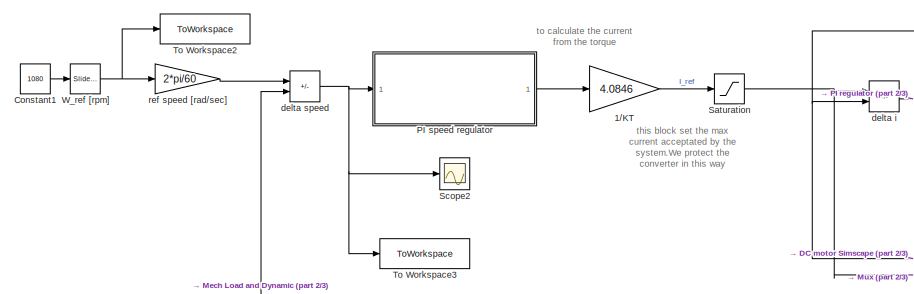
[diagram: root canvas - part 1/3, top left region]
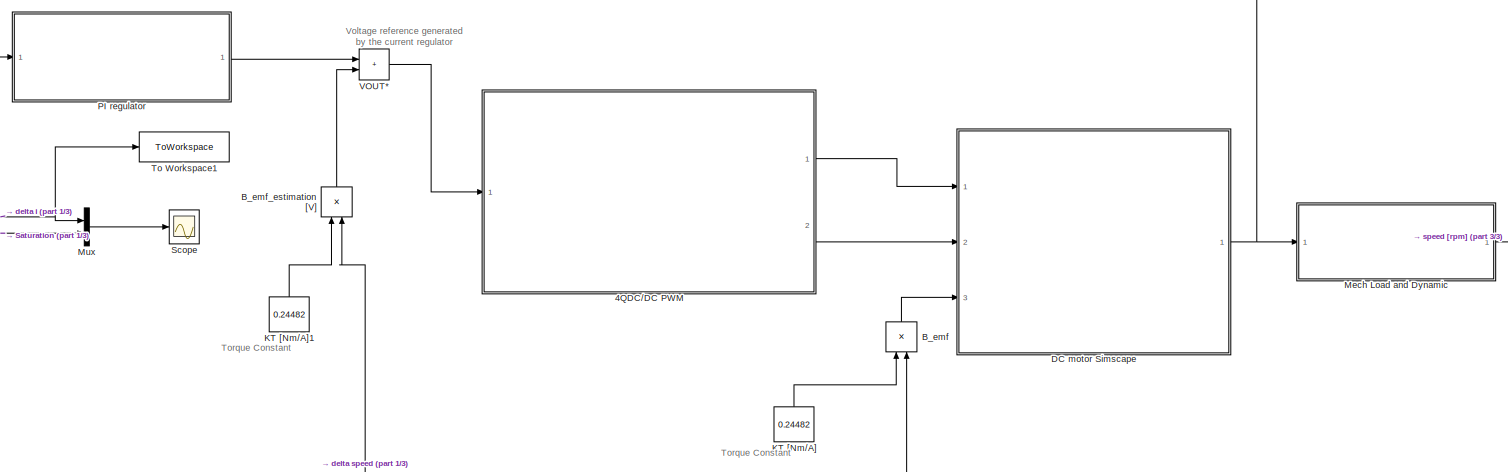
[diagram: root canvas - part 2/3, center side, full height]
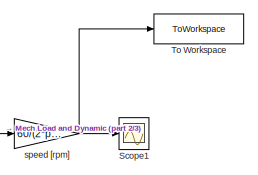
[diagram: root canvas - part 3/3, middle right region]
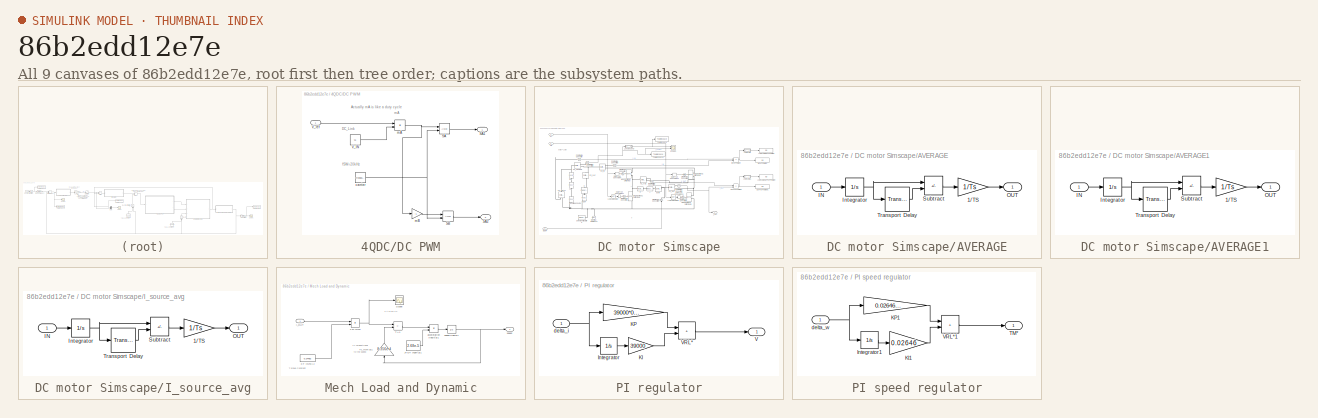
[diagram: thumbnail index - all 9 canvases of the model, root first then tree order]
MODEL slx_86b2edd12e7e
KIND model
CONFIG AbsTol = auto
CONFIG EnableMultiTasking = off
CONFIG FixedStep = auto
CONFIG MaxStep = 0.5e-5
CONFIG MinStep = auto
CONFIG RelTol = 1e-3
CONFIG SampleTimeConstraint = Unconstrained
CONFIG SolverName = VariableStepAuto
CONFIG StartTime = 0.0
CONFIG StopTime = 10.0
BLOCK [Product]  B_emf 
  NameLocation = left
  Ports = [2, 1]
BLOCK [Product]  B_emf_estimation [V]
  NameLocation = left
  Ports = [2, 1]
BLOCK [Gain] 1//KT
  Gain = 4.0846
BLOCK [SubSystem] 4QDC//DC PWM
  Ports = [1, 2]
  RequestExecContextInheritance = off
BLOCK [RelationalOperator] 4QDC//DC PWM/SA
  InputSameDT = off
  OutDataTypeStr = boolean
  Ports = [2, 1]
  RndMeth = Simplest
BLOCK [Outport] 4QDC//DC PWM/SA1
BLOCK [Outport] 4QDC//DC PWM/SA2
  Port = 2
BLOCK [RelationalOperator] 4QDC//DC PWM/SB
  InputSameDT = off
  OutDataTypeStr = boolean
  Ports = [2, 1]
  RndMeth = Simplest
BLOCK [Constant] 4QDC//DC PWM/V_IN
  Value = 72
BLOCK [Inport] 4QDC//DC PWM/V_ref
BLOCK [Reference] 4QDC//DC PWM/carrier  REF=simulink/Sources/Repeating
Sequence
  Ports = [0, 1]
  SourceBlock = simulink/Sources/Repeating\nSequence
  SourceProductBaseCode = SL
  SourceType = Repeating table
BLOCK [Product] 4QDC//DC PWM/mA
  Inputs = */
  Ports = [2, 1]
BLOCK [Gain] 4QDC//DC PWM/mB
  Gain = -1
BLOCK [Constant] Constant1
  Value = 1080
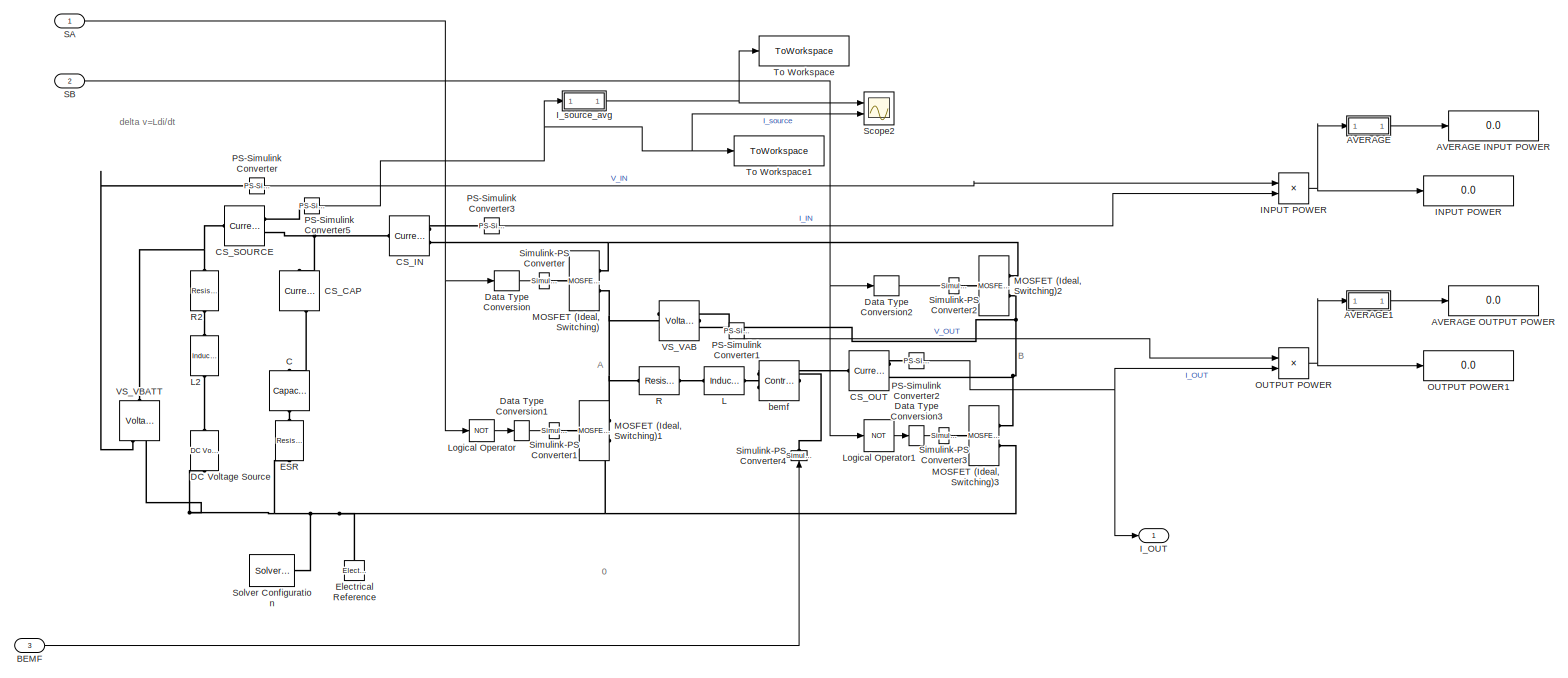
[diagram: DC motor Simscape - part 1/1, most of the canvas]
BLOCK [SubSystem] DC motor Simscape
  Ports = [3, 1]
  RequestExecContextInheritance = off
BLOCK [Display] DC motor Simscape/ INPUT POWER
  Decimation = 1
  Ports = [1]
BLOCK [SubSystem] DC motor Simscape/AVERAGE
  Ports = [1, 1]
  RequestExecContextInheritance = off
BLOCK [Display] DC motor Simscape/AVERAGE INPUT POWER
  Decimation = 1
  Ports = [1]
BLOCK [Display] DC motor Simscape/AVERAGE OUTPUT POWER
  Decimation = 1
  Ports = [1]
BLOCK [Gain] DC motor Simscape/AVERAGE/1//TS
  Gain = 1/Ts
BLOCK [Inport] DC motor Simscape/AVERAGE/IN
  NameLocation = top
BLOCK [Integrator] DC motor Simscape/AVERAGE/Integrator
  Ports = [1, 1]
BLOCK [Outport] DC motor Simscape/AVERAGE/OUT
  VectorParamsAs1DForOutWhenUnconnected = off
BLOCK [Sum] DC motor Simscape/AVERAGE/Subtract
  IconShape = rectangular
  Inputs = +-
  Ports = [2, 1]
BLOCK [TransportDelay] DC motor Simscape/AVERAGE/Transport Delay
  DelayTime = Ts
  Ports = [1, 1]
BLOCK [SubSystem] DC motor Simscape/AVERAGE1
  Ports = [1, 1]
  RequestExecContextInheritance = off
BLOCK [Gain] DC motor Simscape/AVERAGE1/1//TS
  Gain = 1/Ts
BLOCK [Inport] DC motor Simscape/AVERAGE1/IN
  NameLocation = top
BLOCK [Integrator] DC motor Simscape/AVERAGE1/Integrator
  Ports = [1, 1]
BLOCK [Outport] DC motor Simscape/AVERAGE1/OUT
  VectorParamsAs1DForOutWhenUnconnected = off
BLOCK [Sum] DC motor Simscape/AVERAGE1/Subtract
  IconShape = rectangular
  Inputs = +-
  Ports = [2, 1]
BLOCK [TransportDelay] DC motor Simscape/AVERAGE1/Transport Delay
  DelayTime = Ts
  Ports = [1, 1]
BLOCK [Inport] DC motor Simscape/BEMF
  Port = 3
BLOCK [Reference] DC motor Simscape/C  REF=ee_lib/Passive/Capacitor
  NameLocation = left
  Ports = [0, 0, 0, 0, 0, 1, 1]
  SourceBlock = ee_lib/Passive/Capacitor
  SourceProductBaseCode = PS
  SourceType = Capacitor
BLOCK [Reference] DC motor Simscape/CS_CAP  REF=fl_lib/Electrical/Electrical Sensors/Current Sensor
  NameLocation = left
  Ports = [0, 0, 0, 0, 0, 1, 2]
  SourceBlock = fl_lib/Electrical/Electrical Sensors/Current Sensor
  SourceProductBaseCode = SS
  SourceType = Current Sensor
BLOCK [Reference] DC motor Simscape/CS_IN  REF=fl_lib/Electrical/Electrical Sensors/Current Sensor
  Ports = [0, 0, 0, 0, 0, 1, 2]
  SourceBlock = fl_lib/Electrical/Electrical Sensors/Current Sensor
  SourceProductBaseCode = SS
  SourceType = Current Sensor
BLOCK [Reference] DC motor Simscape/CS_OUT  REF=fl_lib/Electrical/Electrical Sensors/Current Sensor
  Ports = [0, 0, 0, 0, 0, 1, 2]
  SourceBlock = fl_lib/Electrical/Electrical Sensors/Current Sensor
  SourceProductBaseCode = SS
  SourceType = Current Sensor
BLOCK [Reference] DC motor Simscape/CS_SOURCE  REF=fl_lib/Electrical/Electrical Sensors/Current Sensor
  Ports = [0, 0, 0, 0, 0, 1, 2]
  SourceBlock = fl_lib/Electrical/Electrical Sensors/Current Sensor
  SourceProductBaseCode = SS
  SourceType = Current Sensor
BLOCK [Reference] DC motor Simscape/DC Voltage Source  REF=fl_lib/Electrical/Electrical Sources/DC Voltage Source
  NameLocation = right
  Ports = [0, 0, 0, 0, 0, 1, 1]
  SourceBlock = fl_lib/Electrical/Electrical Sources/DC Voltage Source
  SourceProductBaseCode = SS
  SourceType = DC Voltage Source
BLOCK [DataTypeConversion] DC motor Simscape/Data Type Conversion
  RndMeth = Floor
  SaturateOnIntegerOverflow = off
BLOCK [DataTypeConversion] DC motor Simscape/Data Type Conversion1
  RndMeth = Floor
  SaturateOnIntegerOverflow = off
BLOCK [DataTypeConversion] DC motor Simscape/Data Type Conversion2
  RndMeth = Floor
  SaturateOnIntegerOverflow = off
BLOCK [DataTypeConversion] DC motor Simscape/Data Type Conversion3
  RndMeth = Floor
  SaturateOnIntegerOverflow = off
BLOCK [Reference] DC motor Simscape/ESR  REF=ee_lib/Passive/Resistor
  NameLocation = left
  Ports = [0, 0, 0, 0, 0, 1, 1]
  SourceBlock = ee_lib/Passive/Resistor
  SourceProductBaseCode = PS
  SourceType = Resistor
BLOCK [Reference] DC motor Simscape/Electrical Reference  REF=fl_lib/Electrical/Electrical Elements/Electrical Reference
  NameLocation = right
  Ports = [0, 0, 0, 0, 0, 1]
  SourceBlock = fl_lib/Electrical/Electrical Elements/Electrical Reference
  SourceProductBaseCode = SS
  SourceType = Electrical Reference
BLOCK [Product] DC motor Simscape/INPUT POWER
  Ports = [2, 1]
BLOCK [Outport] DC motor Simscape/I_OUT
  VectorParamsAs1DForOutWhenUnconnected = off
BLOCK [SubSystem] DC motor Simscape/I_source_avg
  Ports = [1, 1]
  RequestExecContextInheritance = off
BLOCK [Gain] DC motor Simscape/I_source_avg/1//TS
  Gain = 1/Ts
BLOCK [Inport] DC motor Simscape/I_source_avg/IN
  NameLocation = top
BLOCK [Integrator] DC motor Simscape/I_source_avg/Integrator
  Ports = [1, 1]
BLOCK [Outport] DC motor Simscape/I_source_avg/OUT
  VectorParamsAs1DForOutWhenUnconnected = off
BLOCK [Sum] DC motor Simscape/I_source_avg/Subtract
  IconShape = rectangular
  Inputs = +-
  Ports = [2, 1]
BLOCK [TransportDelay] DC motor Simscape/I_source_avg/Transport Delay
  DelayTime = Ts
  Ports = [1, 1]
BLOCK [Reference] DC motor Simscape/L  REF=ee_lib/Passive/Inductor
  Ports = [0, 0, 0, 0, 0, 1, 1]
  SourceBlock = ee_lib/Passive/Inductor
  SourceProductBaseCode = PS
  SourceType = Inductor
BLOCK [Reference] DC motor Simscape/L2  REF=ee_lib/Passive/Inductor
  NameLocation = left
  Ports = [0, 0, 0, 0, 0, 1, 1]
  SourceBlock = ee_lib/Passive/Inductor
  SourceProductBaseCode = PS
  SourceType = Inductor
BLOCK [Logic] DC motor Simscape/Logical Operator
  AllPortsSameDT = off
  Operator = NOT
  OutDataTypeStr = boolean
  Ports = [1, 1]
BLOCK [Logic] DC motor Simscape/Logical Operator1
  AllPortsSameDT = off
  Operator = NOT
  OutDataTypeStr = boolean
  Ports = [1, 1]
BLOCK [Reference] DC motor Simscape/MOSFET (Ideal, Switching)  REF=ee_lib/Semiconductors &
Converters/MOSFET
(Ideal,
Switching)
  Ports = [0, 0, 0, 0, 0, 1, 2]
  SourceBlock = ee_lib/Semiconductors &\nConverters/MOSFET\n(Ideal,\nSwitching)
  SourceProductBaseCode = PS
  SourceType = MOSFET\n(Ideal,\nSwitching)
BLOCK [Reference] DC motor Simscape/MOSFET (Ideal, Switching)1  REF=ee_lib/Semiconductors &
Converters/MOSFET
(Ideal,
Switching)
  Ports = [0, 0, 0, 0, 0, 1, 2]
  SourceBlock = ee_lib/Semiconductors &\nConverters/MOSFET\n(Ideal,\nSwitching)
  SourceProductBaseCode = PS
  SourceType = MOSFET\n(Ideal,\nSwitching)
BLOCK [Reference] DC motor Simscape/MOSFET (Ideal, Switching)2  REF=ee_lib/Semiconductors &
Converters/MOSFET
(Ideal,
Switching)
  Ports = [0, 0, 0, 0, 0, 1, 2]
  SourceBlock = ee_lib/Semiconductors &\nConverters/MOSFET\n(Ideal,\nSwitching)
  SourceProductBaseCode = PS
  SourceType = MOSFET\n(Ideal,\nSwitching)
BLOCK [Reference] DC motor Simscape/MOSFET (Ideal, Switching)3  REF=ee_lib/Semiconductors &
Converters/MOSFET
(Ideal,
Switching)
  Ports = [0, 0, 0, 0, 0, 1, 2]
  SourceBlock = ee_lib/Semiconductors &\nConverters/MOSFET\n(Ideal,\nSwitching)
  SourceProductBaseCode = PS
  SourceType = MOSFET\n(Ideal,\nSwitching)
BLOCK [Product] DC motor Simscape/OUTPUT POWER
  Ports = [2, 1]
BLOCK [Display] DC motor Simscape/OUTPUT POWER1
  Decimation = 1
  Ports = [1]
BLOCK [Reference] DC motor Simscape/PS-Simulink Converter  REF=nesl_utility/PS-Simulink
Converter
  Ports = [0, 1, 0, 0, 0, 1]
  SourceBlock = nesl_utility/PS-Simulink\nConverter
  SourceProductBaseCode = SS
  SourceType = PS-Simulink\nConverter
BLOCK [Reference] DC motor Simscape/PS-Simulink Converter1  REF=nesl_utility/PS-Simulink
Converter
  Ports = [0, 1, 0, 0, 0, 1]
  SourceBlock = nesl_utility/PS-Simulink\nConverter
  SourceProductBaseCode = SS
  SourceType = PS-Simulink\nConverter
BLOCK [Reference] DC motor Simscape/PS-Simulink Converter2  REF=nesl_utility/PS-Simulink
Converter
  Ports = [0, 1, 0, 0, 0, 1]
  SourceBlock = nesl_utility/PS-Simulink\nConverter
  SourceProductBaseCode = SS
  SourceType = PS-Simulink\nConverter
BLOCK [Reference] DC motor Simscape/PS-Simulink Converter3  REF=nesl_utility/PS-Simulink
Converter
  Ports = [0, 1, 0, 0, 0, 1]
  SourceBlock = nesl_utility/PS-Simulink\nConverter
  SourceProductBaseCode = SS
  SourceType = PS-Simulink\nConverter
BLOCK [Reference] DC motor Simscape/PS-Simulink Converter5  REF=nesl_utility/PS-Simulink
Converter
  Ports = [0, 1, 0, 0, 0, 1]
  SourceBlock = nesl_utility/PS-Simulink\nConverter
  SourceProductBaseCode = SS
  SourceType = PS-Simulink\nConverter
BLOCK [Reference] DC motor Simscape/R  REF=ee_lib/Passive/Resistor
  Ports = [0, 0, 0, 0, 0, 1, 1]
  SourceBlock = ee_lib/Passive/Resistor
  SourceProductBaseCode = PS
  SourceType = Resistor
BLOCK [Reference] DC motor Simscape/R2  REF=ee_lib/Passive/Resistor
  NameLocation = left
  Ports = [0, 0, 0, 0, 0, 1, 1]
  SourceBlock = ee_lib/Passive/Resistor
  SourceProductBaseCode = PS
  SourceType = Resistor
BLOCK [Inport] DC motor Simscape/SA
BLOCK [Inport] DC motor Simscape/SB
  Port = 2
BLOCK [Scope] DC motor Simscape/Scope2
  Floating = off
  NumInputPorts = 2
  Ports = [2]
  ScopeSpecificationString = Simulink.scopes.TimeScopeBlockCfg('CurrentConfiguration', extmgr.ConfigurationSet(extmgr.Configuration('Core','General UI',true),extmgr.Configuration('Core','Source UI',true),extmgr.Configuration('Sources','WiredSimulink',true,'DataLoggingVariableName','ScopeData1'),extmgr.Configuration('Visuals','Time Domain',true,'SerializedDisplays',{struct('MinYLimReal','0.054644','MaxYLimReal','0.054718','YLa...<+1430ch>
BLOCK [Reference] DC motor Simscape/Simulink-PS Converter  REF=nesl_utility/Simulink-PS
Converter
  Ports = [1, 0, 0, 0, 0, 0, 1]
  SourceBlock = nesl_utility/Simulink-PS\nConverter
  SourceProductBaseCode = SS
  SourceType = Simulink-PS\nConverter
BLOCK [Reference] DC motor Simscape/Simulink-PS Converter1  REF=nesl_utility/Simulink-PS
Converter
  Ports = [1, 0, 0, 0, 0, 0, 1]
  SourceBlock = nesl_utility/Simulink-PS\nConverter
  SourceProductBaseCode = SS
  SourceType = Simulink-PS\nConverter
BLOCK [Reference] DC motor Simscape/Simulink-PS Converter2  REF=nesl_utility/Simulink-PS
Converter
  Ports = [1, 0, 0, 0, 0, 0, 1]
  SourceBlock = nesl_utility/Simulink-PS\nConverter
  SourceProductBaseCode = SS
  SourceType = Simulink-PS\nConverter
BLOCK [Reference] DC motor Simscape/Simulink-PS Converter3  REF=nesl_utility/Simulink-PS
Converter
  Ports = [1, 0, 0, 0, 0, 0, 1]
  SourceBlock = nesl_utility/Simulink-PS\nConverter
  SourceProductBaseCode = SS
  SourceType = Simulink-PS\nConverter
BLOCK [Reference] DC motor Simscape/Simulink-PS Converter4  REF=nesl_utility/Simulink-PS
Converter
  NameLocation = right
  Ports = [1, 0, 0, 0, 0, 0, 1]
  SourceBlock = nesl_utility/Simulink-PS\nConverter
  SourceProductBaseCode = SS
  SourceType = Simulink-PS\nConverter
BLOCK [Reference] DC motor Simscape/Solver Configuration  REF=nesl_utility/Solver
Configuration
  Ports = [0, 0, 0, 0, 0, 0, 1]
  SourceBlock = nesl_utility/Solver\nConfiguration
  SourceProductBaseCode = SS
  SourceType = Solver\nConfiguration
BLOCK [ToWorkspace] DC motor Simscape/To Workspace
  FixptAsFi = on
  MaxDataPoints = inf
  Ports = [1]
  SampleTime = -1
  SaveFormat = Timeseries
  VariableName = I_source_avg
BLOCK [ToWorkspace] DC motor Simscape/To Workspace1
  FixptAsFi = on
  MaxDataPoints = inf
  Ports = [1]
  SampleTime = -1
  SaveFormat = Timeseries
  VariableName = I_source
BLOCK [Reference] DC motor Simscape/VS_VAB  REF=fl_lib/Electrical/Electrical Sensors/Voltage Sensor
  NameLocation = top
  Ports = [0, 0, 0, 0, 0, 1, 2]
  SourceBlock = fl_lib/Electrical/Electrical Sensors/Voltage Sensor
  SourceProductBaseCode = SS
  SourceType = Voltage Sensor
BLOCK [Reference] DC motor Simscape/VS_VBATT  REF=fl_lib/Electrical/Electrical Sensors/Voltage Sensor
  NameLocation = left
  Ports = [0, 0, 0, 0, 0, 1, 2]
  SourceBlock = fl_lib/Electrical/Electrical Sensors/Voltage Sensor
  SourceProductBaseCode = SS
  SourceType = Voltage Sensor
BLOCK [Reference] DC motor Simscape/bemf  REF=fl_lib/Electrical/Electrical Sources/Controlled Voltage
Source
  Ports = [0, 0, 0, 0, 0, 1, 2]
  SourceBlock = fl_lib/Electrical/Electrical Sources/Controlled Voltage\nSource
  SourceProductBaseCode = SS
  SourceType = Controlled Voltage\nSource
BLOCK [Constant] KT [Nm//A]
  NameLocation = right
  Value = 0.24482
BLOCK [Constant] KT [Nm//A]1
  NameLocation = right
  Value = 0.24482
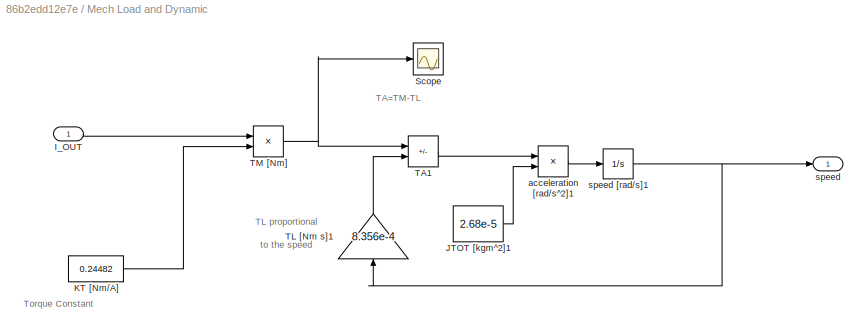
BLOCK [SubSystem] Mech Load and Dynamic
  Ports = [1, 1]
  RequestExecContextInheritance = off
BLOCK [Inport] Mech Load and Dynamic/I_OUT
BLOCK [Constant] Mech Load and Dynamic/JTOT [kgm^2]1
  Value = 2.68e-5
BLOCK [Constant] Mech Load and Dynamic/KT [Nm//A]
  Value = 0.24482
BLOCK [Scope] Mech Load and Dynamic/Scope
  Floating = off
  NumInputPorts = 1
  Ports = [1]
  ScopeSpecificationString = Simulink.scopes.TimeScopeBlockCfg('CurrentConfiguration', extmgr.ConfigurationSet(extmgr.Configuration('Core','General UI',true),extmgr.Configuration('Core','Source UI',true),extmgr.Configuration('Sources','WiredSimulink',true,'DataLoggingVariableName','ScopeData2'),extmgr.Configuration('Visuals','Time Domain',true,'SerializedDisplays',{struct('MinYLimReal','0.0756','MaxYLimReal','0.10739','YLabel...<+1379ch>
BLOCK [Sum] Mech Load and Dynamic/TA1
  IconShape = rectangular
  Inputs = +-
  Ports = [2, 1]
BLOCK [Gain] Mech Load and Dynamic/TL [Nm s]1
  Gain = 8.356e-4
  NameLocation = right
BLOCK [Product] Mech Load and Dynamic/TM [Nm]
  Ports = [2, 1]
BLOCK [Product] Mech Load and Dynamic/acceleration [rad//s^2]1
  Inputs = */
  Ports = [2, 1]
BLOCK [Outport] Mech Load and Dynamic/speed
BLOCK [Integrator] Mech Load and Dynamic/speed [rad//s]1
  Ports = [1, 1]
BLOCK [Mux] Mux
  DisplayOption = bar
  Inputs = 2
  Ports = [2, 1]
BLOCK [SubSystem] PI regulator
  Ports = [1, 1]
  RequestExecContextInheritance = off
BLOCK [Integrator] PI regulator/Integrator
  Ports = [1, 1]
BLOCK [Gain] PI regulator/KI
  Gain = 39000
BLOCK [Gain] PI regulator/KP
  Gain = 39000*0.00053
BLOCK [Outport] PI regulator/V
BLOCK [Sum] PI regulator/VRL*
  IconShape = rectangular
  Ports = [2, 1]
BLOCK [Inport] PI regulator/delta_i
BLOCK [SubSystem] PI speed regulator
  Ports = [1, 1]
  RequestExecContextInheritance = off
BLOCK [Integrator] PI speed regulator/Integrator1
  Ports = [1, 1]
BLOCK [Gain] PI speed regulator/KI1
  Gain = 0.02646
BLOCK [Gain] PI speed regulator/KP1
  Gain = 0.02646*0.05
BLOCK [Outport] PI speed regulator/TM*
BLOCK [Sum] PI speed regulator/VRL*1
  IconShape = rectangular
  Ports = [2, 1]
BLOCK [Inport] PI speed regulator/delta_w
BLOCK [Saturate] Saturation
  LowerLimit = -1.4
  UpperLimit = 1.4
BLOCK [Scope] Scope
  Floating = off
  NumInputPorts = 1
  Ports = [1]
  ScopeSpecificationString = Simulink.scopes.TimeScopeBlockCfg('CurrentConfiguration', extmgr.ConfigurationSet(extmgr.Configuration('Core','General UI',true),extmgr.Configuration('Core','Source UI',true),extmgr.Configuration('Sources','WiredSimulink',true),extmgr.Configuration('Visuals','Time Domain',true,'SerializedDisplays',{struct('MinYLimReal','-0.04881','MaxYLimReal','0.43928','YLabelReal','','MinYLimMag','0.00000','MaxY...<+1471ch>
BLOCK [Scope] Scope1
  Floating = off
  NumInputPorts = 1
  Ports = [1]
  ScopeSpecificationString = Simulink.scopes.TimeScopeBlockCfg('CurrentConfiguration', extmgr.ConfigurationSet(extmgr.Configuration('Core','General UI',true),extmgr.Configuration('Core','Source UI',true),extmgr.Configuration('Sources','WiredSimulink',true,'DataLoggingVariableName','ScopeData3'),extmgr.Configuration('Visuals','Time Domain',true,'SerializedDisplays',{struct('MinYLimReal','539.96183','MaxYLimReal','539.99267','Y...<+1457ch>
BLOCK [Scope] Scope2
  Floating = off
  NumInputPorts = 1
  Ports = [1]
  ScopeSpecificationString = Simulink.scopes.TimeScopeBlockCfg('CurrentConfiguration', extmgr.ConfigurationSet(extmgr.Configuration('Core','General UI',true),extmgr.Configuration('Core','Source UI',true),extmgr.Configuration('Sources','WiredSimulink',true,'DataLoggingVariableName','ScopeData2'),extmgr.Configuration('Visuals','Time Domain',true,'SerializedDisplays',{struct('MinYLimReal','0.00116','MaxYLimReal','0.00365','YLabe...<+1441ch>
BLOCK [ToWorkspace] To Workspace
  FixptAsFi = on
  MaxDataPoints = inf
  Ports = [1]
  SampleTime = -1
  SaveFormat = Timeseries
  VariableName = speed
BLOCK [ToWorkspace] To Workspace1
  FixptAsFi = on
  MaxDataPoints = inf
  Ports = [1]
  SampleTime = -1
  SaveFormat = Timeseries
  VariableName = I_out
BLOCK [ToWorkspace] To Workspace2
  FixptAsFi = on
  MaxDataPoints = inf
  Ports = [1]
  SampleTime = -1
  SaveFormat = Timeseries
  VariableName = speed_ref
BLOCK [ToWorkspace] To Workspace3
  FixptAsFi = on
  MaxDataPoints = inf
  Ports = [1]
  SampleTime = -1
  SaveFormat = Timeseries
  VariableName = speed_error
BLOCK [Sum] VOUT*
  IconShape = rectangular
  Ports = [2, 1]
BLOCK [Reference] W_ref [rpm]  REF=simulink/Math
Operations/Slider
Gain
  Ports = [1, 1]
  SourceBlock = simulink/Math\nOperations/Slider\nGain
  SourceProductBaseCode = SL
  SourceType = Slider Gain
BLOCK [Sum] delta i 
  IconShape = rectangular
  Inputs = +-
  Ports = [2, 1]
BLOCK [Sum] delta speed
  IconShape = rectangular
  Inputs = +-
  Ports = [2, 1]
BLOCK [Gain] ref speed [rad//sec] 
  Gain = 2*pi/60
BLOCK [Gain] speed [rpm]
  Gain = 60/(2*pi)
ANNOTATION (root): Torque Constant
ANNOTATION (root): Voltage reference generated by the current regulator
ANNOTATION (root): this block set the max current acceptated by the system.We protect the converter in this way
ANNOTATION (root): to calculate the current from the torque
ANNOTATION 4QDC//DC PWM: Actually mA is like a duty cycle
ANNOTATION 4QDC//DC PWM: DC_Link
ANNOTATION 4QDC//DC PWM: fSW=20kHz
ANNOTATION 4QDC//DC PWM: mA
ANNOTATION DC motor Simscape: 0
ANNOTATION DC motor Simscape: A
ANNOTATION DC motor Simscape: B
ANNOTATION DC motor Simscape: delta v=Ldi/dt
ANNOTATION Mech Load and Dynamic: TA=TM-TL
ANNOTATION Mech Load and Dynamic: TL proportional to the speed
ANNOTATION Mech Load and Dynamic: Torque Constant
LINE  B_emf :1 -> DC motor Simscape:3
LINE  B_emf_estimation [V]:1 -> VOUT*:2
LINE 1//KT:1 -> Saturation:1
LINE 4QDC//DC PWM/SA:1 -> 4QDC//DC PWM/SA1:1
LINE 4QDC//DC PWM/SB:1 -> 4QDC//DC PWM/SA2:1
LINE 4QDC//DC PWM/V_IN:1 -> 4QDC//DC PWM/mA:2
LINE 4QDC//DC PWM/V_ref:1 -> 4QDC//DC PWM/mA:1
NET 4QDC//DC PWM/carrier:1 -> 4QDC//DC PWM/SA:2, 4QDC//DC PWM/SB:2
NET 4QDC//DC PWM/mA:1 -> 4QDC//DC PWM/SA:1, 4QDC//DC PWM/mB:1
LINE 4QDC//DC PWM/mB:1 -> 4QDC//DC PWM/SB:1
LINE 4QDC//DC PWM:1 -> DC motor Simscape:1
LINE 4QDC//DC PWM:2 -> DC motor Simscape:2
LINE Constant1:1 -> W_ref [rpm]:1
LINE DC motor Simscape/AVERAGE/1//TS:1 -> DC motor Simscape/AVERAGE/OUT:1
LINE DC motor Simscape/AVERAGE/IN:1 -> DC motor Simscape/AVERAGE/Integrator:1
NET DC motor Simscape/AVERAGE/Integrator:1 -> DC motor Simscape/AVERAGE/Subtract:1, DC motor Simscape/AVERAGE/Transport Delay:1
LINE DC motor Simscape/AVERAGE/Subtract:1 -> DC motor Simscape/AVERAGE/1//TS:1
LINE DC motor Simscape/AVERAGE/Transport Delay:1 -> DC motor Simscape/AVERAGE/Subtract:2
LINE DC motor Simscape/AVERAGE1/1//TS:1 -> DC motor Simscape/AVERAGE1/OUT:1
LINE DC motor Simscape/AVERAGE1/IN:1 -> DC motor Simscape/AVERAGE1/Integrator:1
NET DC motor Simscape/AVERAGE1/Integrator:1 -> DC motor Simscape/AVERAGE1/Subtract:1, DC motor Simscape/AVERAGE1/Transport Delay:1
LINE DC motor Simscape/AVERAGE1/Subtract:1 -> DC motor Simscape/AVERAGE1/1//TS:1
LINE DC motor Simscape/AVERAGE1/Transport Delay:1 -> DC motor Simscape/AVERAGE1/Subtract:2
LINE DC motor Simscape/AVERAGE1:1 -> DC motor Simscape/AVERAGE OUTPUT POWER:1
LINE DC motor Simscape/AVERAGE:1 -> DC motor Simscape/AVERAGE INPUT POWER:1
LINE DC motor Simscape/BEMF:1 -> DC motor Simscape/Simulink-PS Converter4:1
LINE DC motor Simscape/Data Type Conversion1:1 -> DC motor Simscape/Simulink-PS Converter1:1
LINE DC motor Simscape/Data Type Conversion2:1 -> DC motor Simscape/Simulink-PS Converter2:1
LINE DC motor Simscape/Data Type Conversion3:1 -> DC motor Simscape/Simulink-PS Converter3:1
LINE DC motor Simscape/Data Type Conversion:1 -> DC motor Simscape/Simulink-PS Converter:1
NET DC motor Simscape/INPUT POWER:1 -> DC motor Simscape/ INPUT POWER:1, DC motor Simscape/AVERAGE:1
LINE DC motor Simscape/I_source_avg/1//TS:1 -> DC motor Simscape/I_source_avg/OUT:1
LINE DC motor Simscape/I_source_avg/IN:1 -> DC motor Simscape/I_source_avg/Integrator:1
NET DC motor Simscape/I_source_avg/Integrator:1 -> DC motor Simscape/I_source_avg/Subtract:1, DC motor Simscape/I_source_avg/Transport Delay:1
LINE DC motor Simscape/I_source_avg/Subtract:1 -> DC motor Simscape/I_source_avg/1//TS:1
LINE DC motor Simscape/I_source_avg/Transport Delay:1 -> DC motor Simscape/I_source_avg/Subtract:2
NET DC motor Simscape/I_source_avg:1 -> DC motor Simscape/Scope2:1, DC motor Simscape/To Workspace:1
LINE DC motor Simscape/Logical Operator1:1 -> DC motor Simscape/Data Type Conversion3:1
LINE DC motor Simscape/Logical Operator:1 -> DC motor Simscape/Data Type Conversion1:1
NET DC motor Simscape/OUTPUT POWER:1 -> DC motor Simscape/AVERAGE1:1, DC motor Simscape/OUTPUT POWER1:1
LINE DC motor Simscape/PS-Simulink Converter1:1 -> DC motor Simscape/OUTPUT POWER:1
NET DC motor Simscape/PS-Simulink Converter2:1 -> DC motor Simscape/I_OUT:1, DC motor Simscape/OUTPUT POWER:2
LINE DC motor Simscape/PS-Simulink Converter3:1 -> DC motor Simscape/INPUT POWER:2
NET DC motor Simscape/PS-Simulink Converter5:1 -> DC motor Simscape/I_source_avg:1, DC motor Simscape/Scope2:2, DC motor Simscape/To Workspace1:1
LINE DC motor Simscape/PS-Simulink Converter:1 -> DC motor Simscape/INPUT POWER:1
NET DC motor Simscape/SA:1 -> DC motor Simscape/Data Type Conversion:1, DC motor Simscape/Logical Operator:1
NET DC motor Simscape/SB:1 -> DC motor Simscape/Data Type Conversion2:1, DC motor Simscape/Logical Operator1:1
NET DC motor Simscape:1 -> Mech Load and Dynamic:1, Mux:1, To Workspace1:1, delta i :2
LINE KT [Nm//A]1:1 ->  B_emf_estimation [V]:1
LINE KT [Nm//A]:1 ->  B_emf :1
LINE Mech Load and Dynamic/I_OUT:1 -> Mech Load and Dynamic/TM [Nm]:1
LINE Mech Load and Dynamic/JTOT [kgm^2]1:1 -> Mech Load and Dynamic/acceleration [rad//s^2]1:2
LINE Mech Load and Dynamic/KT [Nm//A]:1 -> Mech Load and Dynamic/TM [Nm]:2
LINE Mech Load and Dynamic/TA1:1 -> Mech Load and Dynamic/acceleration [rad//s^2]1:1
LINE Mech Load and Dynamic/TL [Nm s]1:1 -> Mech Load and Dynamic/TA1:2
NET Mech Load and Dynamic/TM [Nm]:1 -> Mech Load and Dynamic/Scope:1, Mech Load and Dynamic/TA1:1
LINE Mech Load and Dynamic/acceleration [rad//s^2]1:1 -> Mech Load and Dynamic/speed [rad//s]1:1
NET Mech Load and Dynamic/speed [rad//s]1:1 -> Mech Load and Dynamic/TL [Nm s]1:1, Mech Load and Dynamic/speed:1
NET Mech Load and Dynamic:1 ->  B_emf :2,  B_emf_estimation [V]:2, delta speed:2, speed [rpm]:1
LINE Mux:1 -> Scope:1
LINE PI regulator/Integrator:1 -> PI regulator/KI:1
LINE PI regulator/KI:1 -> PI regulator/VRL*:2
LINE PI regulator/KP:1 -> PI regulator/VRL*:1
LINE PI regulator/VRL*:1 -> PI regulator/V:1
NET PI regulator/delta_i:1 -> PI regulator/Integrator:1, PI regulator/KP:1
LINE PI regulator:1 -> VOUT*:1
LINE PI speed regulator/Integrator1:1 -> PI speed regulator/KI1:1
LINE PI speed regulator/KI1:1 -> PI speed regulator/VRL*1:2
LINE PI speed regulator/KP1:1 -> PI speed regulator/VRL*1:1
LINE PI speed regulator/VRL*1:1 -> PI speed regulator/TM*:1
NET PI speed regulator/delta_w:1 -> PI speed regulator/Integrator1:1, PI speed regulator/KP1:1
LINE PI speed regulator:1 -> 1//KT:1
NET Saturation:1 -> Mux:2, delta i :1
LINE VOUT*:1 -> 4QDC//DC PWM:1
NET W_ref [rpm]:1 -> To Workspace2:1, ref speed [rad//sec] :1
LINE delta i :1 -> PI regulator:1
NET delta speed:1 -> PI speed regulator:1, Scope2:1, To Workspace3:1
LINE ref speed [rad//sec] :1 -> delta speed:1
NET speed [rpm]:1 -> Scope1:1, To Workspace:1
PLINE DC motor Simscape/C:LConn1 -- DC motor Simscape/CS_CAP:RConn2
PLINE DC motor Simscape/C:RConn1 -- DC motor Simscape/ESR:LConn1
PNET net1: DC motor Simscape/CS_CAP:LConn1 -- DC motor Simscape/CS_IN:LConn1 -- DC motor Simscape/CS_SOURCE:RConn2
PLINE DC motor Simscape/CS_IN:RConn1 -- DC motor Simscape/PS-Simulink Converter3:LConn1
PNET net2: DC motor Simscape/CS_IN:RConn2 -- DC motor Simscape/MOSFET (Ideal, Switching)2:RConn1 -- DC motor Simscape/MOSFET (Ideal, Switching):RConn1
PLINE DC motor Simscape/CS_OUT:LConn1 -- DC motor Simscape/bemf:RConn2
PLINE DC motor Simscape/CS_OUT:RConn1 -- DC motor Simscape/PS-Simulink Converter2:LConn1
PNET net3: DC motor Simscape/CS_OUT:RConn2 -- DC motor Simscape/MOSFET (Ideal, Switching)2:RConn2 -- DC motor Simscape/MOSFET (Ideal, Switching)3:RConn1 -- DC motor Simscape/VS_VAB:RConn2
PNET net4: DC motor Simscape/CS_SOURCE:LConn1 -- DC motor Simscape/R2:LConn1 -- DC motor Simscape/VS_VBATT:LConn1
PLINE DC motor Simscape/CS_SOURCE:RConn1 -- DC motor Simscape/PS-Simulink Converter5:LConn1
PLINE DC motor Simscape/DC Voltage Source:LConn1 -- DC motor Simscape/L2:RConn1
PNET net5: DC motor Simscape/DC Voltage Source:RConn1 -- DC motor Simscape/ESR:RConn1 -- DC motor Simscape/Electrical Reference:LConn1 -- DC motor Simscape/MOSFET (Ideal, Switching)1:RConn2 -- DC motor Simscape/MOSFET (Ideal, Switching)3:RConn2 -- DC motor Simscape/Solver Configuration:RConn1 -- DC motor Simscape/VS_VBATT:RConn2
PLINE DC motor Simscape/L2:LConn1 -- DC motor Simscape/R2:RConn1
PLINE DC motor Simscape/L:LConn1 -- DC motor Simscape/R:RConn1
PLINE DC motor Simscape/L:RConn1 -- DC motor Simscape/bemf:LConn1
PLINE DC motor Simscape/MOSFET (Ideal, Switching)1:LConn1 -- DC motor Simscape/Simulink-PS Converter1:RConn1
PNET net6: DC motor Simscape/MOSFET (Ideal, Switching)1:RConn1 -- DC motor Simscape/MOSFET (Ideal, Switching):RConn2 -- DC motor Simscape/R:LConn1 -- DC motor Simscape/VS_VAB:LConn1
PLINE DC motor Simscape/MOSFET (Ideal, Switching)2:LConn1 -- DC motor Simscape/Simulink-PS Converter2:RConn1
PLINE DC motor Simscape/MOSFET (Ideal, Switching)3:LConn1 -- DC motor Simscape/Simulink-PS Converter3:RConn1
PLINE DC motor Simscape/MOSFET (Ideal, Switching):LConn1 -- DC motor Simscape/Simulink-PS Converter:RConn1
PLINE DC motor Simscape/PS-Simulink Converter1:LConn1 -- DC motor Simscape/VS_VAB:RConn1
PLINE DC motor Simscape/PS-Simulink Converter:LConn1 -- DC motor Simscape/VS_VBATT:RConn1
PLINE DC motor Simscape/Simulink-PS Converter4:RConn1 -- DC motor Simscape/bemf:RConn1
note: NET lines group one-source signal fan-out (src -> all destinations, sorted); 1:1 wires keep LINE; PNET lines group multi-terminal physical nets as a canonical sorted terminal list (undirected conserving connections); 2-terminal nets keep the pairwise PLINE form
